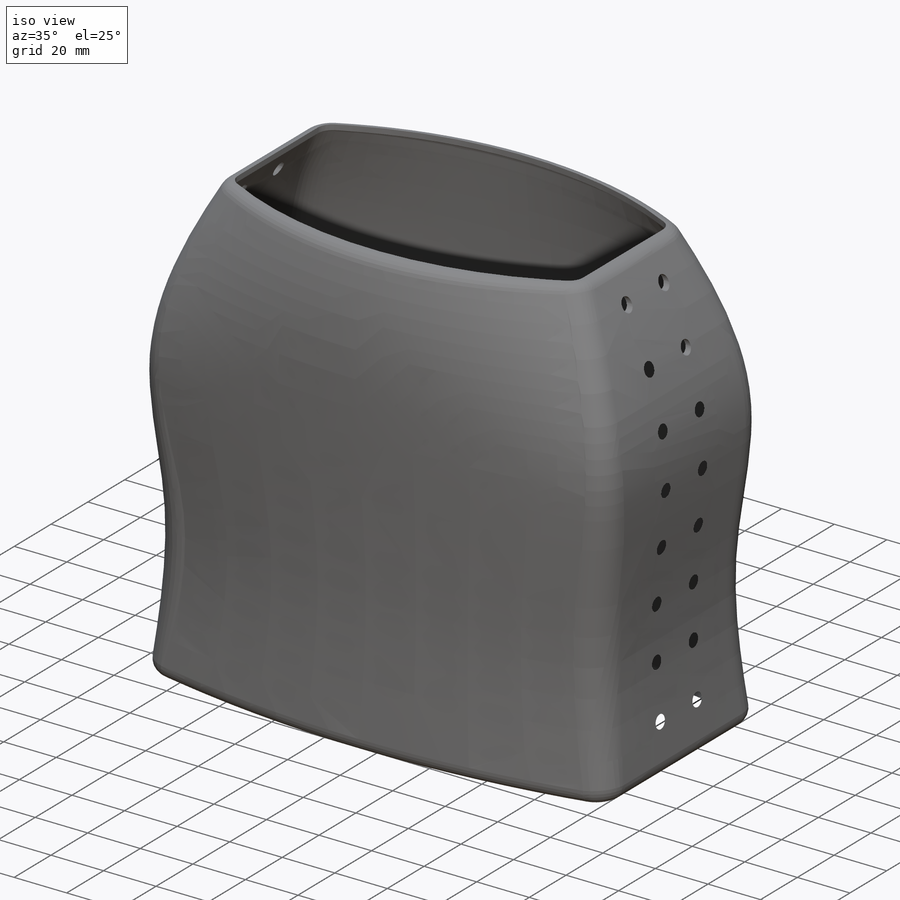
[diagram: iso view]
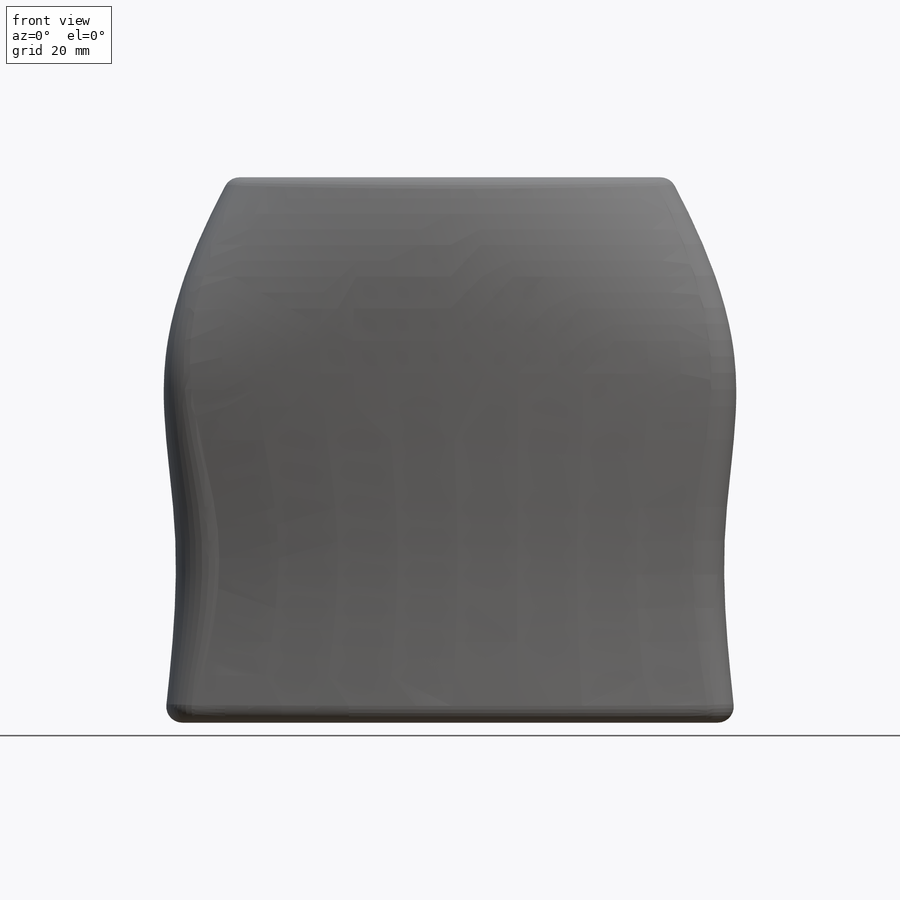
[diagram: front view]
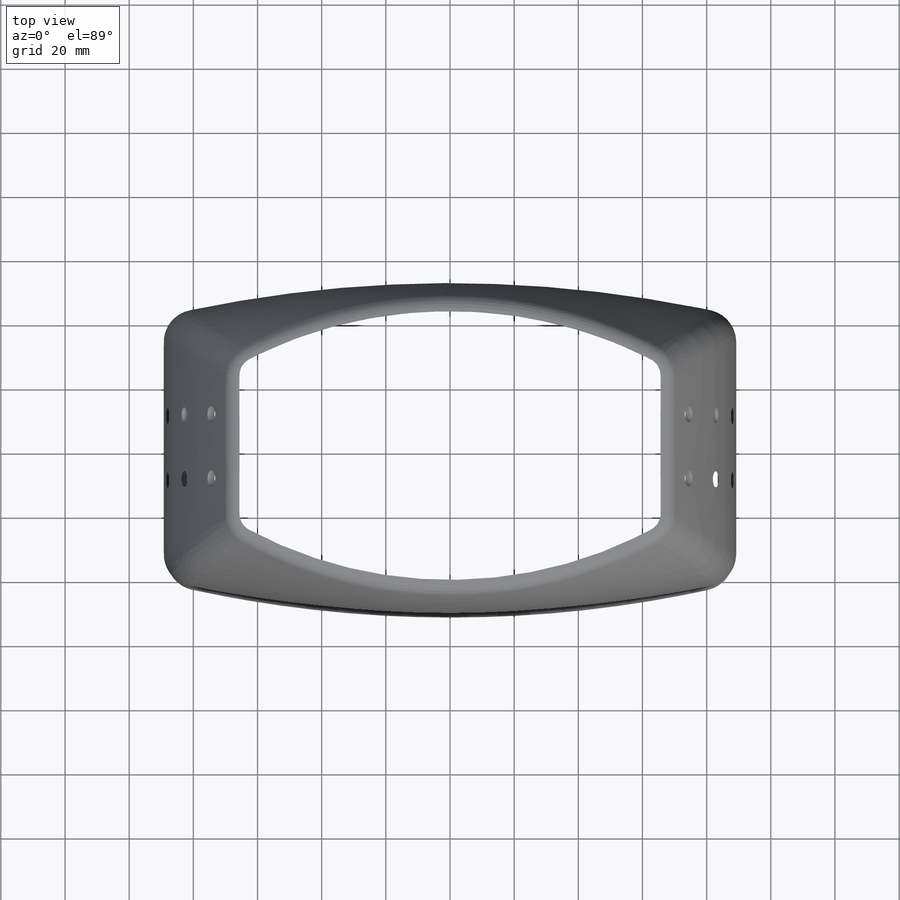
[diagram: top view]
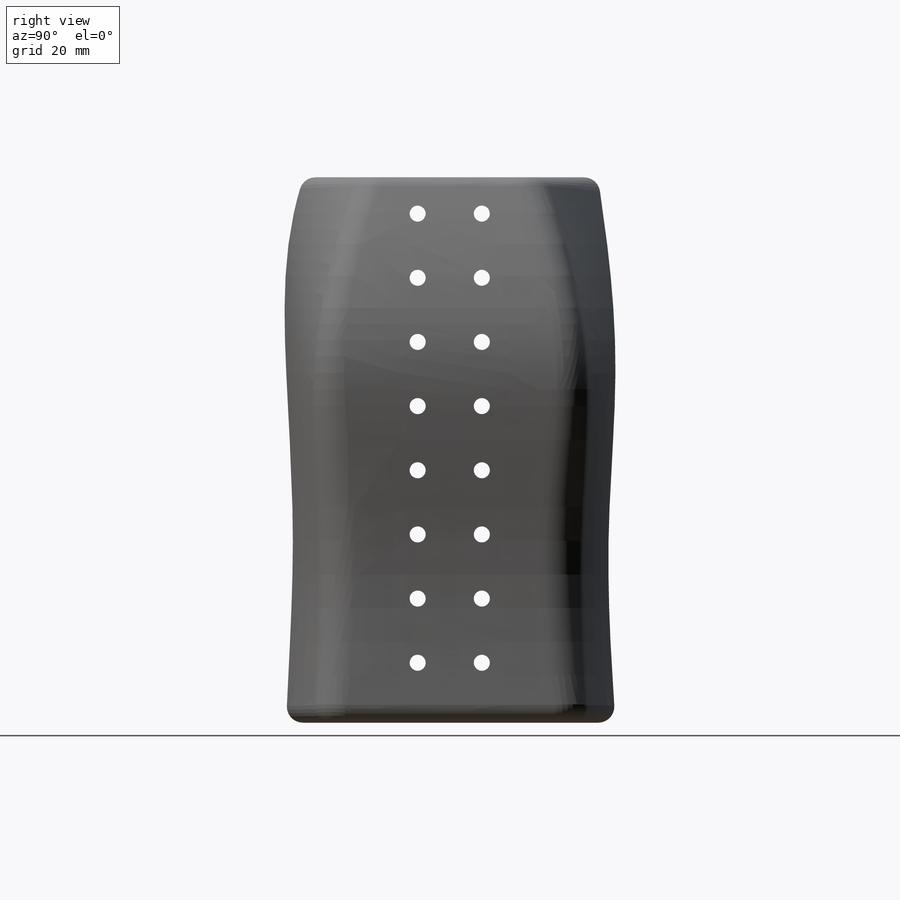
[diagram: right view]
SOLIDWORKS PART (.sldprt)
format: sldprt  version: not decoded by parser v0  size: 1,142,784 bytes
history: native  units: mm
features: sketch x7, plane x4, fillet x2, cut_extrude x2, material x1, shell x1 (+11 scaffold rows collapsed)
feature tree (28):
  scaffold x11  (default folders/planes/origin — collapsed)
  material  "Material <not specified>"
  sketch  "Sketch1"  dims[D1=~16.561685mm]
  plane  "Plane1"  Offset=60mm
  plane  "Plane2"  Offset=110mm
  plane  "Plane3"  Offset=170mm
  sketch  "Sketch2"  dims[D1=~9.147575mm]
  sketch  "Sketch5"
  sketch  "Sketch6"  dims[D1=~112.405358mm]
  fillet  "Fillet4"  Radius=5mm
  fillet  "Fillet7"  Radius=5mm
  plane  "Plane4"  Offset=20mm
  sketch  "Sketch10"
  shell  "Shell2"  Thickness=2mm
  sketch  "Sketch11"
  sketch  "Sketch15"  dims[D1=5.0mm D2=2.0 D3=8.0]
  cut_extrude  "Cut-Extrude3"  [1 undecoded]
  cut_extrude  "Cut-Extrude4"  Depth=30mm
decode coverage: 8 of 12 modeling features carry decoded parameters
note: ~ marks probable driven/reference dimensions
note: 1 parameter value undecoded
note: suppression state not decoded; provenance and decode notes live in map.json
